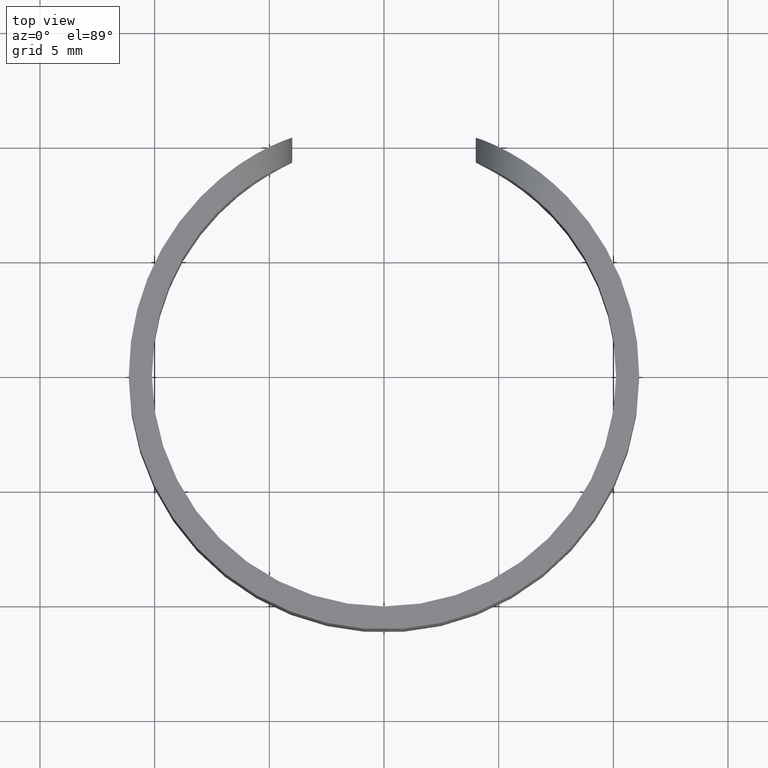
[diagram: clean part render]
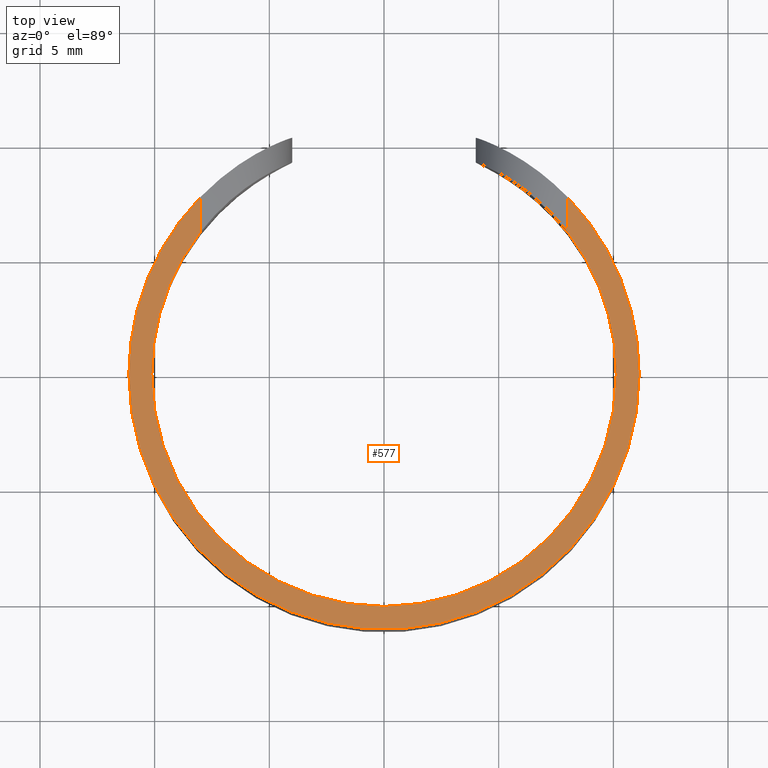
[diagram: same view with one face highlighted and labeled with its STEP entity id]
A machine part, top view. The second image highlights one B-rep face of the part: STEP entity #577.
In plain terms, the highlighted planar face has unit normal (0, 0, 1).
Its self-contained STEP definition (entity closure, byte-faithful):
#6 = VERTEX_POINT ( 'NONE', #142 ) ;
#14 = ORIENTED_EDGE ( 'NONE', *, *, #237, .T. ) ;
#30 = DIRECTION ( 'NONE',  ( 1.000000000000000000, 0.0000000000000000000, 0.0000000000000000000 ) ) ;
#32 = PLANE ( 'NONE',  #610 ) ;
#35 = VERTEX_POINT ( 'NONE', #208 ) ;
#51 = DIRECTION ( 'NONE',  ( 1.000000000000000000, 0.0000000000000000000, 0.0000000000000000000 ) ) ;
#54 = VERTEX_POINT ( 'NONE', #106 ) ;
#57 = DIRECTION ( 'NONE',  ( -0.0000000000000000000, -0.0000000000000000000, -1.000000000000000000 ) ) ;
#59 = CARTESIAN_POINT ( 'NONE',  ( 0.0000000000000000000, 0.0000000000000000000, 7.799999999999999800 ) ) ;
#62 = LINE ( 'NONE', #116, #97 ) ;
#69 = CIRCLE ( 'NONE', #636, 11.12500000000000000 ) ;
#83 = DIRECTION ( 'NONE',  ( -0.0000000000000000000, -0.0000000000000000000, -1.000000000000000000 ) ) ;
#87 = ORIENTED_EDGE ( 'NONE', *, *, #155, .T. ) ;
#93 = AXIS2_PLACEMENT_3D ( 'NONE', #551, #169, #118 ) ;
#97 = VECTOR ( 'NONE', #362, 1000.000000000000000 ) ;
#106 = CARTESIAN_POINT ( 'NONE',  ( 10.12499999999999800, 1.239954884136695000E-015, 7.799999999999999800 ) ) ;
#111 = DIRECTION ( 'NONE',  ( 0.0000000000000000000, 0.0000000000000000000, 1.000000000000000000 ) ) ;
#116 = CARTESIAN_POINT ( 'NONE',  ( -8.000000000000000000, 10.38102234849727700, 7.799999999999999800 ) ) ;
#118 = DIRECTION ( 'NONE',  ( 1.000000000000000000, 0.0000000000000000000, 0.0000000000000000000 ) ) ;
#119 = EDGE_CURVE ( 'NONE', #637, #404, #69, .T. ) ;
#125 = EDGE_LOOP ( 'NONE', ( #344, #433, #440, #14, #537, #87, #221, #516 ) ) ;
#127 = AXIS2_PLACEMENT_3D ( 'NONE', #241, #83, #368 ) ;
#134 = VERTEX_POINT ( 'NONE', #543 ) ;
#142 = CARTESIAN_POINT ( 'NONE',  ( -7.999999999999996400, 6.206095793653207500, 7.799999999999999800 ) ) ;
#155 = EDGE_CURVE ( 'NONE', #54, #354, #176, .T. ) ;
#169 = DIRECTION ( 'NONE',  ( 0.0000000000000000000, 0.0000000000000000000, 1.000000000000000000 ) ) ;
#174 = EDGE_CURVE ( 'NONE', #6, #637, #62, .T. ) ;
#176 = CIRCLE ( 'NONE', #282, 10.12499999999999800 ) ;
#179 = DIRECTION ( 'NONE',  ( 0.0000000000000000000, 0.0000000000000000000, 1.000000000000000000 ) ) ;
#195 = DIRECTION ( 'NONE',  ( 1.000000000000000000, 0.0000000000000000000, -0.0000000000000000000 ) ) ;
#208 = CARTESIAN_POINT ( 'NONE',  ( 8.000000000000000000, 6.206095793653203100, 7.799999999999999800 ) ) ;
#221 = ORIENTED_EDGE ( 'NONE', *, *, #443, .T. ) ;
#237 = EDGE_CURVE ( 'NONE', #134, #35, #248, .T. ) ;
#240 = FACE_OUTER_BOUND ( 'NONE', #125, .T. ) ;
#241 = CARTESIAN_POINT ( 'NONE',  ( 0.0000000000000000000, 0.0000000000000000000, 7.799999999999999800 ) ) ;
#248 = LINE ( 'NONE', #541, #365 ) ;
#251 = CARTESIAN_POINT ( 'NONE',  ( 0.0000000000000000000, 0.0000000000000000000, 7.799999999999999800 ) ) ;
#279 = EDGE_CURVE ( 'NONE', #404, #555, #460, .T. ) ;
#280 = CARTESIAN_POINT ( 'NONE',  ( 0.0000000000000000000, 0.0000000000000000000, 7.799999999999999800 ) ) ;
#282 = AXIS2_PLACEMENT_3D ( 'NONE', #59, #57, #395 ) ;
#284 = CIRCLE ( 'NONE', #426, 11.12500000000000000 ) ;
#293 = CARTESIAN_POINT ( 'NONE',  ( 11.12500000000000000, 1.362419564051430300E-015, 7.799999999999999800 ) ) ;
#344 = ORIENTED_EDGE ( 'NONE', *, *, #119, .T. ) ;
#354 = VERTEX_POINT ( 'NONE', #550 ) ;
#362 = DIRECTION ( 'NONE',  ( -8.033769701219899500E-016, 1.000000000000000000, 0.0000000000000000000 ) ) ;
#364 = DIRECTION ( 'NONE',  ( 0.0000000000000000000, -1.000000000000000000, 0.0000000000000000000 ) ) ;
#365 = VECTOR ( 'NONE', #364, 1000.000000000000000 ) ;
#368 = DIRECTION ( 'NONE',  ( 1.000000000000000000, 0.0000000000000000000, 0.0000000000000000000 ) ) ;
#376 = DIRECTION ( 'NONE',  ( -0.0000000000000000000, -0.0000000000000000000, -1.000000000000000000 ) ) ;
#377 = EDGE_CURVE ( 'NONE', #555, #134, #284, .T. ) ;
#395 = DIRECTION ( 'NONE',  ( 1.000000000000000000, 0.0000000000000000000, 0.0000000000000000000 ) ) ;
#398 = CIRCLE ( 'NONE', #405, 10.12499999999999800 ) ;
#404 = VERTEX_POINT ( 'NONE', #609 ) ;
#405 = AXIS2_PLACEMENT_3D ( 'NONE', #625, #376, #30 ) ;
#426 = AXIS2_PLACEMENT_3D ( 'NONE', #280, #179, #458 ) ;
#427 = DIRECTION ( 'NONE',  ( 0.0000000000000000000, 0.0000000000000000000, 1.000000000000000000 ) ) ;
#433 = ORIENTED_EDGE ( 'NONE', *, *, #279, .T. ) ;
#440 = ORIENTED_EDGE ( 'NONE', *, *, #377, .T. ) ;
#443 = EDGE_CURVE ( 'NONE', #354, #6, #635, .T. ) ;
#458 = DIRECTION ( 'NONE',  ( 1.000000000000000000, 0.0000000000000000000, 0.0000000000000000000 ) ) ;
#460 = CIRCLE ( 'NONE', #93, 11.12500000000000000 ) ;
#516 = ORIENTED_EDGE ( 'NONE', *, *, #174, .T. ) ;
#518 = CARTESIAN_POINT ( 'NONE',  ( -7.999999999999998200, 7.730823048033115300, 7.799999999999999800 ) ) ;
#533 = EDGE_CURVE ( 'NONE', #35, #54, #398, .T. ) ;
#537 = ORIENTED_EDGE ( 'NONE', *, *, #533, .T. ) ;
#541 = CARTESIAN_POINT ( 'NONE',  ( 8.000000000000000000, 9.301377586142818300, 7.799999999999999800 ) ) ;
#543 = CARTESIAN_POINT ( 'NONE',  ( 8.000000000000000000, 7.730823048033112600, 7.799999999999999800 ) ) ;
#550 = CARTESIAN_POINT ( 'NONE',  ( -10.12499999999999800, 0.0000000000000000000, 7.799999999999999800 ) ) ;
#551 = CARTESIAN_POINT ( 'NONE',  ( 0.0000000000000000000, 0.0000000000000000000, 7.799999999999999800 ) ) ;
#555 = VERTEX_POINT ( 'NONE', #293 ) ;
#577 = ADVANCED_FACE ( 'NONE', ( #240 ), #32, .T. ) ;
#597 = CARTESIAN_POINT ( 'NONE',  ( 0.0000000000000000000, 0.0000000000000000000, 7.799999999999999800 ) ) ;
#609 = CARTESIAN_POINT ( 'NONE',  ( -11.12500000000000000, 0.0000000000000000000, 7.799999999999999800 ) ) ;
#610 = AXIS2_PLACEMENT_3D ( 'NONE', #251, #427, #195 ) ;
#625 = CARTESIAN_POINT ( 'NONE',  ( 0.0000000000000000000, 0.0000000000000000000, 7.799999999999999800 ) ) ;
#635 = CIRCLE ( 'NONE', #127, 10.12499999999999800 ) ;
#636 = AXIS2_PLACEMENT_3D ( 'NONE', #597, #111, #51 ) ;
#637 = VERTEX_POINT ( 'NONE', #518 ) ;